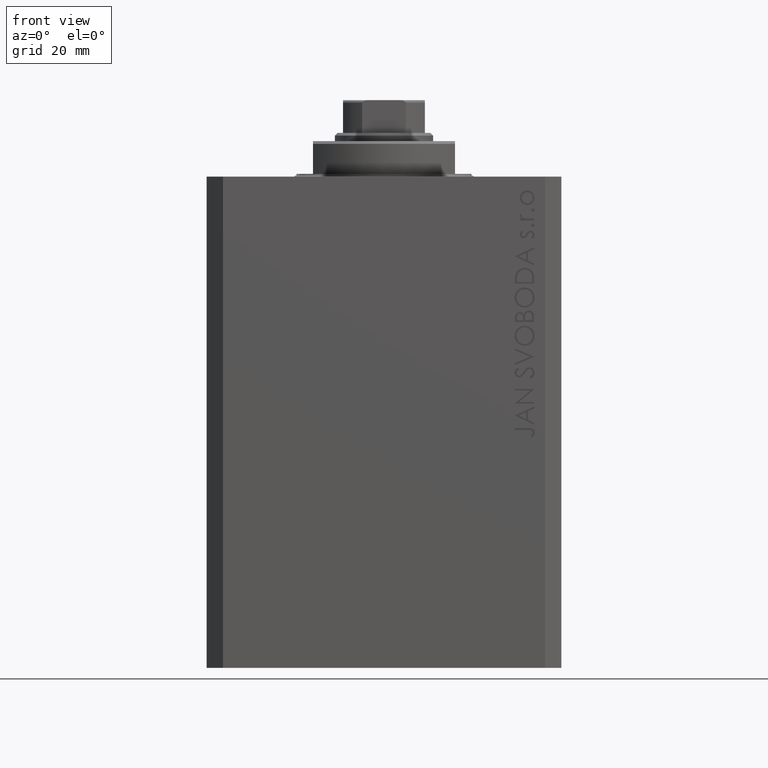
[diagram: clean part render]
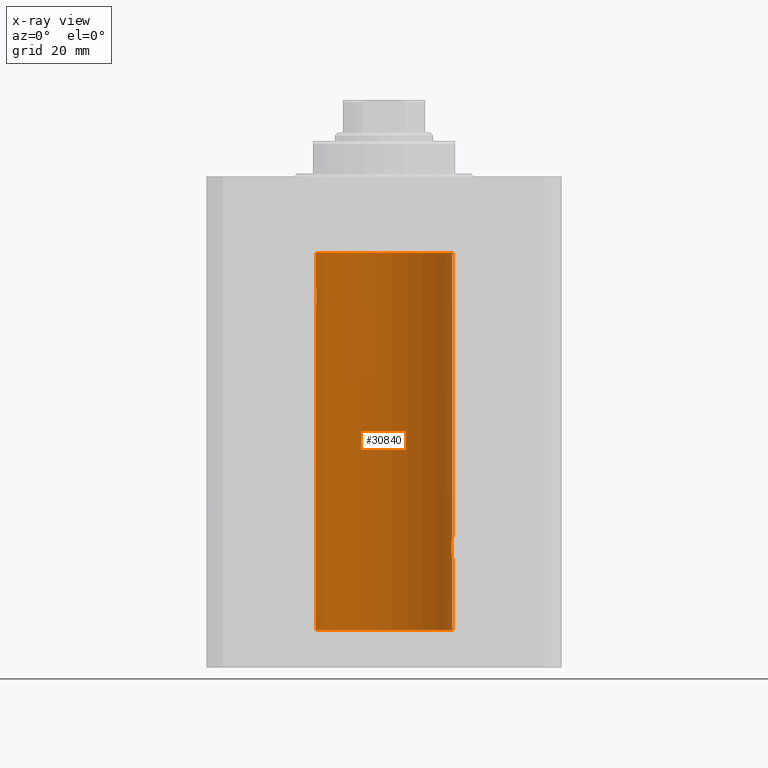
[diagram: x-ray — body ghosted, one internal face saturated and labeled with its STEP entity id]
A machine part, front view, then the same camera in x-ray: the body is ghosted and one INTERNAL B-rep face — a face not visible from any outside direction — is saturated and labeled: STEP entity #30840.
In plain terms, the highlighted cylindrical surface (partial cylindrical patch) has radius 12.5 mm, axis along (0, 0, 1).
Its self-contained STEP definition (entity closure, byte-faithful):
#295 = CARTESIAN_POINT ( 'NONE',  ( 12.46901623405144122, 0.8878913781257877780, -69.79689651717551158 ) ) ;
#670 = B_SPLINE_CURVE_WITH_KNOTS ( 'NONE', 3,
 ( #32144, #46709, #17819, #39780, #7076, #32391, #46949, #10672, #33099, #36446, #18526, #33568, #40719, #15187, #18061, #43593, #47187, #7319, #44075, #25935, #33338, #40022, #7560, #29756, #32866, #44303, #22120, #36678, #8257, #18300 ),
 .UNSPECIFIED., .F., .F.,
 ( 4, 2, 2, 2, 2, 2, 2, 2, 2, 2, 2, 2, 2, 2, 4 ),
 ( 1.814683826656258666E-20, 0.0003914362731607577369, 0.0007828725463215154739, 0.001174308819482273265, 0.001565745092643030948, 0.002348617638964546530, 0.003131490185286061895, 0.003522926458446825216, 0.003914362731607588103, 0.004305799004768351423, 0.004697235277929114744, 0.005088671551089878065, 0.005480107824250641385, 0.005871544097411404706, 0.006262980370572168026 ),
 .UNSPECIFIED. ) ;
#988 = CARTESIAN_POINT ( 'NONE',  ( 12.44079900692650931, 1.220007525301739282, -69.59017579083666760 ) ) ;
#1033 = CARTESIAN_POINT ( 'NONE',  ( 12.35520276972935427, 1.897773362058238877, -67.35528278634338051 ) ) ;
#1068 = EDGE_CURVE ( 'NONE', #17464, #2445, #1282, .T. ) ;
#1263 = CARTESIAN_POINT ( 'NONE',  ( 12.40916530024876430, 1.507117913375715990, -66.67865955049005322 ) ) ;
#1282 = B_SPLINE_CURVE_WITH_KNOTS ( 'NONE', 3,
 ( #33957, #30599, #26785, #44929, #1033, #15578, #44700, #5074, #1263, #12004, #41337, #26563, #1496, #38001, #8644, #41120, #19618, #8421 ),
 .UNSPECIFIED., .F., .F.,
 ( 4, 2, 2, 2, 2, 2, 2, 2, 4 ),
 ( 0.003132244164174466730, 0.003523586189974241625, 0.003914928215774016521, 0.004306270241573791416, 0.004697612267373566311, 0.005088954293173341206, 0.005480296318973116101, 0.005871638344772890997, 0.006262980370572665892 ),
 .UNSPECIFIED. ) ;
#1496 = CARTESIAN_POINT ( 'NONE',  ( 12.46910683544638232, 0.8866026273585037032, -66.20247863689694157 ) ) ;
#1995 = ORIENTED_EDGE ( 'NONE', *, *, #12835, .T. ) ;
#2445 = VERTEX_POINT ( 'NONE', #5614 ) ;
#2467 = VERTEX_POINT ( 'NONE', #31862 ) ;
#2638 = EDGE_CURVE ( 'NONE', #39665, #26032, #47139, .T. ) ;
#3806 = ORIENTED_EDGE ( 'NONE', *, *, #17514, .T. ) ;
#4580 = CARTESIAN_POINT ( 'NONE',  ( 12.49789833780794446, 0.2625555164371021766, -69.98698170822147802 ) ) ;
#5074 = CARTESIAN_POINT ( 'NONE',  ( 12.39867611624532806, 1.590019252152828910, -66.77984495929609920 ) ) ;
#5614 = CARTESIAN_POINT ( 'NONE',  ( 12.50000000000000000, -7.266276684081261841E-23, -66.00000000000000000 ) ) ;
#5939 = DIRECTION ( 'NONE',  ( -0.000000000000000000, -0.000000000000000000, 1.000000000000000000 ) ) ;
#6792 = CARTESIAN_POINT ( 'NONE',  ( 12.50000000000000000, 2.320363022323678888E-15, -70.00000000000000000 ) ) ;
#7076 = CARTESIAN_POINT ( 'NONE',  ( -12.48390768591463207, 0.6455696738844916016, -20.10252270298193977 ) ) ;
#7263 = VECTOR ( 'NONE', #18899, 1000.000000000000000 ) ;
#7319 = CARTESIAN_POINT ( 'NONE',  ( -12.37018026341338839, 1.797558627508998086, -22.88656313533016373 ) ) ;
#7445 = CARTESIAN_POINT ( 'NONE',  ( 12.33896267925302759, 2.000000000000247802, -68.00000000000000000 ) ) ;
#7494 = AXIS2_PLACEMENT_3D ( 'NONE', #38631, #5939, #14278 ) ;
#7560 = CARTESIAN_POINT ( 'NONE',  ( -12.44076681548080288, 1.220297236145718944, -23.58991408680628155 ) ) ;
#8257 = CARTESIAN_POINT ( 'NONE',  ( -12.50000000000000533, 0.1306394121199390135, -24.00000000000000711 ) ) ;
#8421 = CARTESIAN_POINT ( 'NONE',  ( 12.50000000000000000, -7.266276684081261841E-23, -66.00000000000000000 ) ) ;
#8516 = LINE ( 'NONE', #26208, #18793 ) ;
#8644 = CARTESIAN_POINT ( 'NONE',  ( 12.48983962833819028, 0.5199974825204898288, -66.06435160808017315 ) ) ;
#8905 = B_SPLINE_CURVE_WITH_KNOTS ( 'NONE', 3,
 ( #22241, #25590, #4580, #39909, #40148, #295, #37034, #988, #19117, #26052, #18419, #11499, #25821, #7445 ),
 .UNSPECIFIED., .F., .F.,
 ( 4, 2, 2, 2, 2, 2, 4 ),
 ( 2.254408494944823136E-18, 0.0003915305205218102386, 0.0007830610410436180920, 0.001174591561565426108, 0.001566122082087234016, 0.002349183123130850048, 0.003132244164174466730 ),
 .UNSPECIFIED. ) ;
#8993 = DIRECTION ( 'NONE',  ( -0.000000000000000000, -0.000000000000000000, 1.000000000000000000 ) ) ;
#9553 = EDGE_CURVE ( 'NONE', #2445, #21207, #35890, .T. ) ;
#10672 = CARTESIAN_POINT ( 'NONE',  ( -12.44082361696003503, 1.219754986802281449, -20.40963319990594016 ) ) ;
#11499 = CARTESIAN_POINT ( 'NONE',  ( 12.34779119491631683, 1.947363444907009633, -68.52502775168254345 ) ) ;
#12004 = CARTESIAN_POINT ( 'NONE',  ( 12.43037348241797524, 1.320834183883837554, -66.49243837704293014 ) ) ;
#12187 = CARTESIAN_POINT ( 'NONE',  ( 12.50000000000000000, 0.000000000000000000, -13.99999999999999822 ) ) ;
#12648 = EDGE_CURVE ( 'NONE', #39665, #2467, #46294, .T. ) ;
#12835 = EDGE_CURVE ( 'NONE', #26674, #22585, #670, .T. ) ;
#13914 = DIRECTION ( 'NONE',  ( -0.000000000000000000, -0.000000000000000000, 1.000000000000000000 ) ) ;
#14278 = DIRECTION ( 'NONE',  ( 1.000000000000000000, 0.000000000000000000, 0.000000000000000000 ) ) ;
#14807 = CARTESIAN_POINT ( 'NONE',  ( 12.33896267925302759, 2.000000000000247802, -68.00000000000000000 ) ) ;
#15187 = CARTESIAN_POINT ( 'NONE',  ( -12.33895470450623044, 2.000049200055401766, -22.12992629360264729 ) ) ;
#15578 = CARTESIAN_POINT ( 'NONE',  ( 12.37021546997940291, 1.797317011867403114, -67.11295119741080839 ) ) ;
#17464 = VERTEX_POINT ( 'NONE', #14807 ) ;
#17514 = EDGE_CURVE ( 'NONE', #21207, #27247, #34222, .T. ) ;
#17819 = CARTESIAN_POINT ( 'NONE',  ( -12.49789934882883458, 0.2624928479599910047, -20.01301208516349917 ) ) ;
#18061 = CARTESIAN_POINT ( 'NONE',  ( -12.34109209020652465, 1.986986967296539897, -22.26269462454597914 ) ) ;
#18224 = CARTESIAN_POINT ( 'NONE',  ( 12.50000000000000000, 0.000000000000000000, -83.09999999999999432 ) ) ;
#18300 = CARTESIAN_POINT ( 'NONE',  ( -12.50000000000000000, 1.530808426276628993E-15, -23.99999999999999645 ) ) ;
#18419 = CARTESIAN_POINT ( 'NONE',  ( 12.37760587642916477, 1.747868572747719229, -69.00639653169000098 ) ) ;
#18526 = CARTESIAN_POINT ( 'NONE',  ( -12.37764291807175354, 1.747608771958140794, -20.99316879552500481 ) ) ;
#18793 = VECTOR ( 'NONE', #8993, 1000.000000000000000 ) ;
#18899 = DIRECTION ( 'NONE',  ( -0.000000000000000000, -0.000000000000000000, 1.000000000000000000 ) ) ;
#19117 = CARTESIAN_POINT ( 'NONE',  ( 12.43016561391612917, 1.322713721413880661, -69.50578877836700542 ) ) ;
#19244 = CARTESIAN_POINT ( 'NONE',  ( -12.50000000000000000, 1.530808426276628993E-15, -23.99999999999999645 ) ) ;
#19618 = CARTESIAN_POINT ( 'NONE',  ( 12.49999999999999822, 0.1306079576516667173, -65.99999999999998579 ) ) ;
#19873 = CARTESIAN_POINT ( 'NONE',  ( -12.50000000000000000, 1.530808498934191521E-15, -83.09999999999999432 ) ) ;
#19944 = EDGE_LOOP ( 'NONE', ( #35602, #23446, #35858, #23636, #38239, #30131, #3806, #25263, #1995 ) ) ;
#21207 = VERTEX_POINT ( 'NONE', #12187 ) ;
#22120 = CARTESIAN_POINT ( 'NONE',  ( -12.48983485452574982, 0.5201193324741355539, -23.93561774521849372 ) ) ;
#22186 = CARTESIAN_POINT ( 'NONE',  ( -12.50000000000000000, 1.867773856434666690E-17, -20.00000000000000000 ) ) ;
#22241 = CARTESIAN_POINT ( 'NONE',  ( 12.50000000000000000, 2.320363022323678888E-15, -70.00000000000000000 ) ) ;
#22585 = VERTEX_POINT ( 'NONE', #19244 ) ;
#23446 = ORIENTED_EDGE ( 'NONE', *, *, #12648, .F. ) ;
#23636 = ORIENTED_EDGE ( 'NONE', *, *, #26391, .T. ) ;
#25263 = ORIENTED_EDGE ( 'NONE', *, *, #26963, .F. ) ;
#25312 = CARTESIAN_POINT ( 'NONE',  ( 0.000000000000000000, 0.000000000000000000, -13.99999999999999822 ) ) ;
#25554 = DIRECTION ( 'NONE',  ( 1.000000000000000000, 0.000000000000000000, 0.000000000000000000 ) ) ;
#25590 = CARTESIAN_POINT ( 'NONE',  ( 12.50000000000000178, 0.1324055009716466613, -70.00000000000002842 ) ) ;
#25722 = AXIS2_PLACEMENT_3D ( 'NONE', #41458, #30957, #37650 ) ;
#25821 = CARTESIAN_POINT ( 'NONE',  ( 12.33896267925302759, 2.000000000000248246, -68.26143174220786136 ) ) ;
#25935 = CARTESIAN_POINT ( 'NONE',  ( -12.39864157855465088, 1.590288205413973532, -23.21980790594580313 ) ) ;
#26032 = VERTEX_POINT ( 'NONE', #6792 ) ;
#26052 = CARTESIAN_POINT ( 'NONE',  ( 12.39869754437268590, 1.598954131913722820, -69.22932152813010021 ) ) ;
#26208 = CARTESIAN_POINT ( 'NONE',  ( -12.50000000000000000, 1.530808498934191521E-15, -83.09999999999999432 ) ) ;
#26391 = EDGE_CURVE ( 'NONE', #26032, #17464, #8905, .T. ) ;
#26563 = CARTESIAN_POINT ( 'NONE',  ( 12.46011632531798874, 1.003644408234883434, -66.26516799687674109 ) ) ;
#26674 = VERTEX_POINT ( 'NONE', #22186 ) ;
#26785 = CARTESIAN_POINT ( 'NONE',  ( 12.34110728646152388, 1.986893050944454453, -67.73661347764983987 ) ) ;
#26963 = EDGE_CURVE ( 'NONE', #26674, #27247, #38020, .T. ) ;
#27247 = VERTEX_POINT ( 'NONE', #42010 ) ;
#28136 = FACE_OUTER_BOUND ( 'NONE', #19944, .T. ) ;
#29756 = CARTESIAN_POINT ( 'NONE',  ( -12.46009879577771606, 1.003863686549169465, -23.73470742397611843 ) ) ;
#30131 = ORIENTED_EDGE ( 'NONE', *, *, #9553, .T. ) ;
#30599 = CARTESIAN_POINT ( 'NONE',  ( 12.33896267925302581, 2.000000000000247358, -67.86934705949917657 ) ) ;
#30618 = DIRECTION ( 'NONE',  ( -0.000000000000000000, -0.000000000000000000, 1.000000000000000000 ) ) ;
#30840 = ADVANCED_FACE ( 'NONE', ( #28136 ), #39348, .F. ) ;
#30957 = DIRECTION ( 'NONE',  ( 0.000000000000000000, 0.000000000000000000, 1.000000000000000000 ) ) ;
#31862 = CARTESIAN_POINT ( 'NONE',  ( -12.50000000000000000, 1.530808498934191521E-15, -83.09999999999999432 ) ) ;
#32144 = CARTESIAN_POINT ( 'NONE',  ( -12.50000000000000000, 1.867773856434666690E-17, -20.00000000000000000 ) ) ;
#32391 = CARTESIAN_POINT ( 'NONE',  ( -12.46903010196599304, 0.8876934327478135378, -20.20300788371381984 ) ) ;
#32586 = CARTESIAN_POINT ( 'NONE',  ( 12.50000000000000000, 0.000000000000000000, -83.09999999999999432 ) ) ;
#32866 = CARTESIAN_POINT ( 'NONE',  ( -12.46909283808506430, 0.8868029758979402155, -23.79742491916155345 ) ) ;
#33099 = CARTESIAN_POINT ( 'NONE',  ( -12.43019346654084956, 1.322451657002078340, -20.49398366327208620 ) ) ;
#33338 = CARTESIAN_POINT ( 'NONE',  ( -12.40913174964213184, 1.507394620545641439, -23.32102833500698225 ) ) ;
#33502 = AXIS2_PLACEMENT_3D ( 'NONE', #25312, #36762, #25554 ) ;
#33568 = CARTESIAN_POINT ( 'NONE',  ( -12.34781876294798053, 1.947190906025043633, -21.47436412829509678 ) ) ;
#33736 = VECTOR ( 'NONE', #30618, 1000.000000000000000 ) ;
#33957 = CARTESIAN_POINT ( 'NONE',  ( 12.33896267925302759, 2.000000000000247802, -68.00000000000000000 ) ) ;
#34222 = CIRCLE ( 'NONE', #33502, 12.50000000000000000 ) ;
#34801 = CARTESIAN_POINT ( 'NONE',  ( 12.50000000000000000, 0.000000000000000000, -83.09999999999999432 ) ) ;
#34986 = EDGE_CURVE ( 'NONE', #2467, #22585, #8516, .T. ) ;
#35602 = ORIENTED_EDGE ( 'NONE', *, *, #34986, .F. ) ;
#35858 = ORIENTED_EDGE ( 'NONE', *, *, #2638, .T. ) ;
#35890 = LINE ( 'NONE', #18224, #40140 ) ;
#36446 = CARTESIAN_POINT ( 'NONE',  ( -12.39873273758732175, 1.598680238462371062, -20.77033506126851137 ) ) ;
#36678 = CARTESIAN_POINT ( 'NONE',  ( -12.49788564268284041, 0.2633501011236127343, -23.98690384766255335 ) ) ;
#36762 = DIRECTION ( 'NONE',  ( 0.000000000000000000, 0.000000000000000000, 1.000000000000000000 ) ) ;
#37034 = CARTESIAN_POINT ( 'NONE',  ( 12.46019522898365217, 1.002712894177336223, -69.73540896027600411 ) ) ;
#37650 = DIRECTION ( 'NONE',  ( 1.000000000000000000, 0.000000000000000000, 0.000000000000000000 ) ) ;
#38001 = CARTESIAN_POINT ( 'NONE',  ( 12.48395395845270528, 0.6446573166014707423, -66.10222124213517247 ) ) ;
#38020 = LINE ( 'NONE', #19873, #33736 ) ;
#38239 = ORIENTED_EDGE ( 'NONE', *, *, #1068, .T. ) ;
#38631 = CARTESIAN_POINT ( 'NONE',  ( 0.000000000000000000, 0.000000000000000000, -83.09999999999999432 ) ) ;
#39348 = CYLINDRICAL_SURFACE ( 'NONE', #7494, 12.50000000000000000 ) ;
#39665 = VERTEX_POINT ( 'NONE', #34801 ) ;
#39780 = CARTESIAN_POINT ( 'NONE',  ( -12.48990118705761532, 0.5184196815546056047, -20.06395648222637007 ) ) ;
#39909 = CARTESIAN_POINT ( 'NONE',  ( 12.48989642018887736, 0.5185418732824252919, -69.93601292187608465 ) ) ;
#40022 = CARTESIAN_POINT ( 'NONE',  ( -12.43034574091277911, 1.321095788880539024, -23.50733550364322255 ) ) ;
#40140 = VECTOR ( 'NONE', #13914, 1000.000000000000000 ) ;
#40148 = CARTESIAN_POINT ( 'NONE',  ( 12.48390005916863110, 0.6457215011736527899, -69.89742771554269041 ) ) ;
#40719 = CARTESIAN_POINT ( 'NONE',  ( -12.33897869807161385, 1.999901172190678089, -21.73788193668374547 ) ) ;
#41120 = CARTESIAN_POINT ( 'NONE',  ( 12.49788668346399945, 0.2632864803365707607, -66.01308975838334447 ) ) ;
#41337 = CARTESIAN_POINT ( 'NONE',  ( 12.44079117518645639, 1.220047488436368122, -66.40989676335082947 ) ) ;
#41458 = CARTESIAN_POINT ( 'NONE',  ( 0.000000000000000000, 0.000000000000000000, -83.09999999999999432 ) ) ;
#42010 = CARTESIAN_POINT ( 'NONE',  ( -12.50000000000000000, 1.530808498934191521E-15, -13.99999999999999822 ) ) ;
#43593 = CARTESIAN_POINT ( 'NONE',  ( -12.34922241902463114, 1.935814255713574239, -22.51937350851555308 ) ) ;
#44075 = CARTESIAN_POINT ( 'NONE',  ( -12.37922086519035325, 1.734998657226764829, -23.00335814299181436 ) ) ;
#44303 = CARTESIAN_POINT ( 'NONE',  ( -12.48394649977302073, 0.6448065707253024526, -23.89773031393659153 ) ) ;
#44700 = CARTESIAN_POINT ( 'NONE',  ( 12.37925647381943506, 1.734744884174218571, -66.99620732598650363 ) ) ;
#44929 = CARTESIAN_POINT ( 'NONE',  ( 12.34924836377099844, 1.935649219704934865, -67.48002062127163470 ) ) ;
#46294 = CIRCLE ( 'NONE', #25722, 12.50000000000000000 ) ;
#46709 = CARTESIAN_POINT ( 'NONE',  ( -12.50000000000000000, 0.1323736289504353625, -20.00000000000000000 ) ) ;
#46949 = CARTESIAN_POINT ( 'NONE',  ( -12.46021263690096958, 1.002494658017156981, -20.26446744561863156 ) ) ;
#47139 = LINE ( 'NONE', #32586, #7263 ) ;
#47187 = CARTESIAN_POINT ( 'NONE',  ( -12.35517291625592051, 1.897967064543089721, -22.64415233770293412 ) ) ;